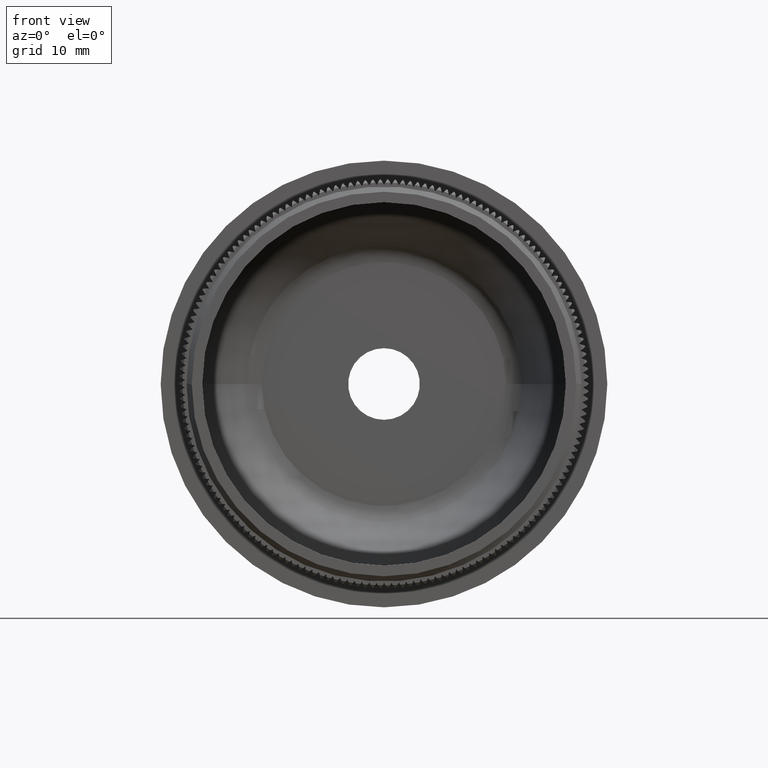
[diagram: clean part render]
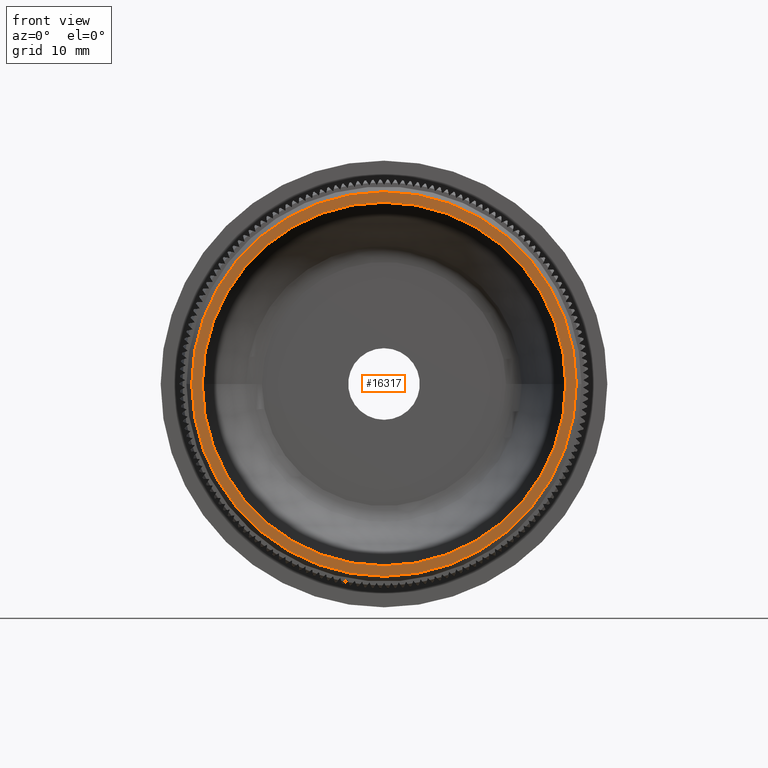
[diagram: same view with one face highlighted and labeled with its STEP entity id]
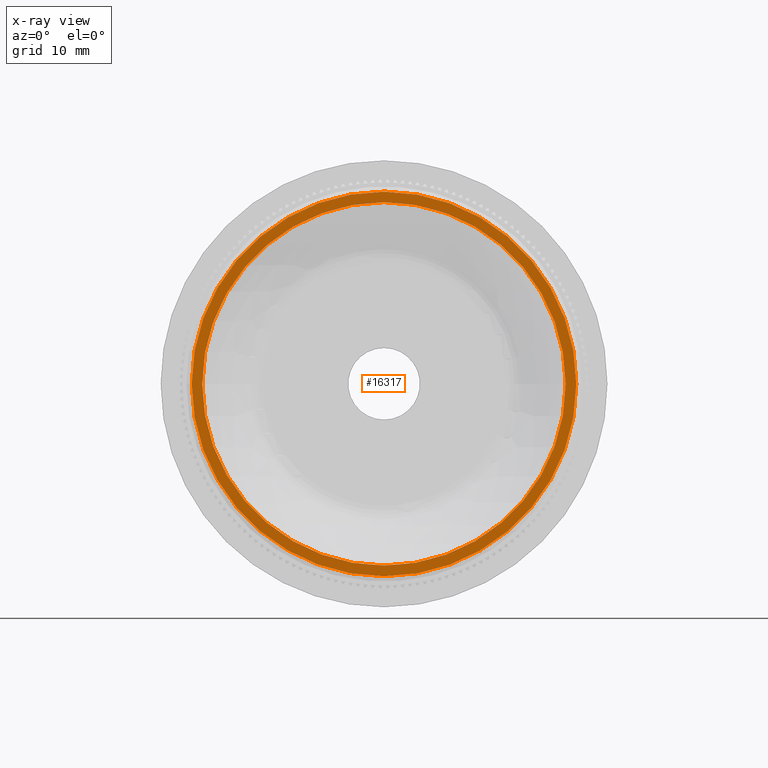
[diagram: x-ray of the same camera — body ghosted, the highlighted face saturated]
A machine part, front view. The second image highlights one B-rep face of the part: STEP entity #16317.
The next image is the same camera in x-ray: the body ghosted, the highlighted face saturated — about 0% of this face is hidden behind the body in this view.
In plain terms, the highlighted planar face has unit normal (-0, -1, 0).
Its self-contained STEP definition (entity closure, byte-faithful):
#1460 = EDGE_CURVE ( 'NONE', #33364, #24780, #13616, .T. ) ;
#1620 = DIRECTION ( 'NONE',  ( -1.388827867340710000E-015, -1.000000000000000000, -0.0000000000000000000 ) ) ;
#1656 = DIRECTION ( 'NONE',  ( 1.000000000000000000, -1.388827867340710200E-015, 0.0000000000000000000 ) ) ;
#2527 = DIRECTION ( 'NONE',  ( 1.000000000000000000, -1.388827867340710000E-015, 0.0000000000000000000 ) ) ;
#2725 = DIRECTION ( 'NONE',  ( 1.000000000000000000, -1.388827867340710200E-015, 0.0000000000000000000 ) ) ;
#2909 = CARTESIAN_POINT ( 'NONE',  ( -4.472025732837082600E-014, 2.081668171172168500E-014, 0.0000000000000000000 ) ) ;
#3478 = ORIENTED_EDGE ( 'NONE', *, *, #1460, .T. ) ;
#4662 = VERTEX_POINT ( 'NONE', #31426 ) ;
#4853 = FACE_BOUND ( 'NONE', #26452, .T. ) ;
#4981 = CARTESIAN_POINT ( 'NONE',  ( -4.472025732837082600E-014, 2.081668171172168500E-014, 0.0000000000000000000 ) ) ;
#5890 = DIRECTION ( 'NONE',  ( -1.388827867340710000E-015, -1.000000000000000000, -0.0000000000000000000 ) ) ;
#6154 = EDGE_LOOP ( 'NONE', ( #3478, #15891 ) ) ;
#9780 = AXIS2_PLACEMENT_3D ( 'NONE', #11462, #23490, #11085 ) ;
#10827 = CARTESIAN_POINT ( 'NONE',  ( 18.24999999999998900, -7.569292721979674300E-016, 2.265596578422608500E-015 ) ) ;
#11085 = DIRECTION ( 'NONE',  ( 1.000000000000000000, -1.388827867340710000E-015, 0.0000000000000000000 ) ) ;
#11125 = CIRCLE ( 'NONE', #31306, 18.25000000000003200 ) ;
#11462 = CARTESIAN_POINT ( 'NONE',  ( 18.75000000000000000, -1.451343205868337500E-015, 0.0000000000000000000 ) ) ;
#11624 = DIRECTION ( 'NONE',  ( -1.388827867340710000E-015, -1.000000000000000000, -0.0000000000000000000 ) ) ;
#13134 = AXIS2_PLACEMENT_3D ( 'NONE', #4981, #1620, #28584 ) ;
#13616 = CIRCLE ( 'NONE', #28953, 18.25000000000003200 ) ;
#13937 = ORIENTED_EDGE ( 'NONE', *, *, #25304, .F. ) ;
#14454 = PLANE ( 'NONE',  #9780 ) ;
#14478 = CIRCLE ( 'NONE', #37701, 17.25000000000005000 ) ;
#15891 = ORIENTED_EDGE ( 'NONE', *, *, #27411, .T. ) ;
#16317 = ADVANCED_FACE ( 'NONE', ( #26579, #4853 ), #14454, .T. ) ;
#17055 = ORIENTED_EDGE ( 'NONE', *, *, #21778, .F. ) ;
#18550 = VERTEX_POINT ( 'NONE', #33156 ) ;
#21778 = EDGE_CURVE ( 'NONE', #4662, #18550, #31671, .T. ) ;
#23490 = DIRECTION ( 'NONE',  ( -1.388827867340710000E-015, -1.000000000000000000, 0.0000000000000000000 ) ) ;
#24780 = VERTEX_POINT ( 'NONE', #10827 ) ;
#25304 = EDGE_CURVE ( 'NONE', #18550, #4662, #14478, .T. ) ;
#26452 = EDGE_LOOP ( 'NONE', ( #17055, #13937 ) ) ;
#26579 = FACE_OUTER_BOUND ( 'NONE', #6154, .T. ) ;
#27411 = EDGE_CURVE ( 'NONE', #24780, #33364, #11125, .T. ) ;
#28584 = DIRECTION ( 'NONE',  ( 1.000000000000000000, -1.388827867340710000E-015, 0.0000000000000000000 ) ) ;
#28953 = AXIS2_PLACEMENT_3D ( 'NONE', #33407, #36373, #1656 ) ;
#31306 = AXIS2_PLACEMENT_3D ( 'NONE', #35247, #11624, #2725 ) ;
#31426 = CARTESIAN_POINT ( 'NONE',  ( 17.25000000000000400, -3.140598999905631700E-015, 0.0000000000000000000 ) ) ;
#31671 = CIRCLE ( 'NONE', #13134, 17.25000000000005000 ) ;
#32502 = CARTESIAN_POINT ( 'NONE',  ( -18.25000000000007800, 4.993528788573803800E-014, 0.0000000000000000000 ) ) ;
#33156 = CARTESIAN_POINT ( 'NONE',  ( -17.25000000000009600, 4.477396242334899600E-014, 2.112515728529191600E-015 ) ) ;
#33364 = VERTEX_POINT ( 'NONE', #32502 ) ;
#33407 = CARTESIAN_POINT ( 'NONE',  ( -4.472025732837082000E-014, 2.458917930677003500E-014, 0.0000000000000000000 ) ) ;
#35247 = CARTESIAN_POINT ( 'NONE',  ( -4.472025732837082000E-014, 2.458917930677003500E-014, 0.0000000000000000000 ) ) ;
#36373 = DIRECTION ( 'NONE',  ( -1.388827867340710000E-015, -1.000000000000000000, -0.0000000000000000000 ) ) ;
#37701 = AXIS2_PLACEMENT_3D ( 'NONE', #2909, #5890, #2527 ) ;